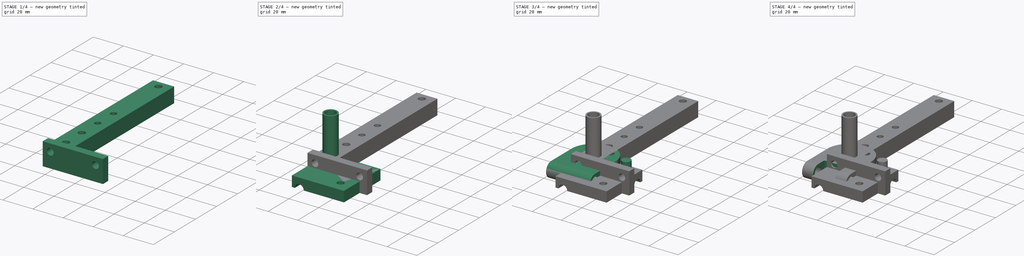
[diagram: build sequence overview — one tinted view per stage of 4, left to right]
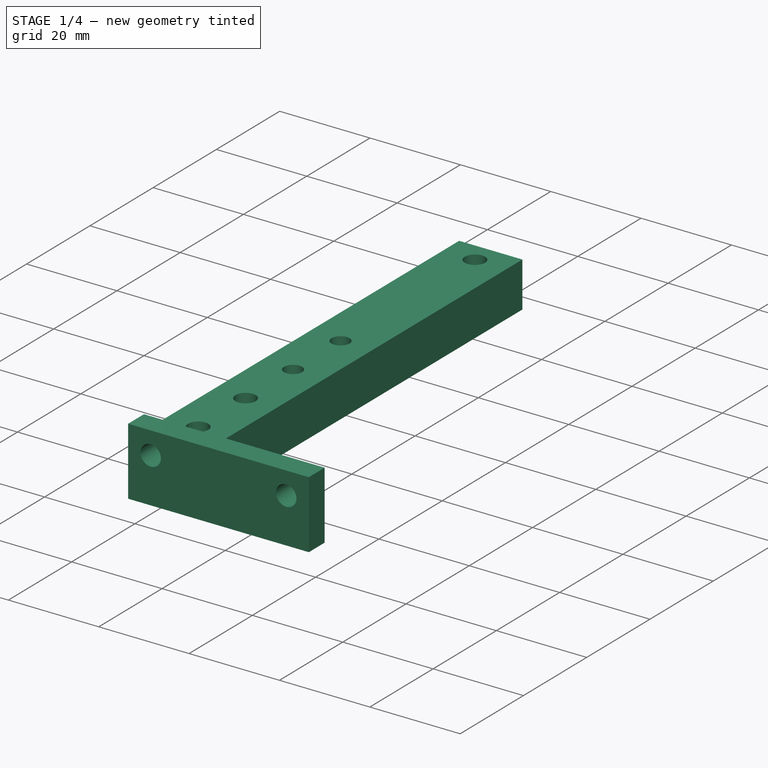
[diagram: stage 1 of 4 — iso view after this stage's code; geometry added in this stage tinted green]
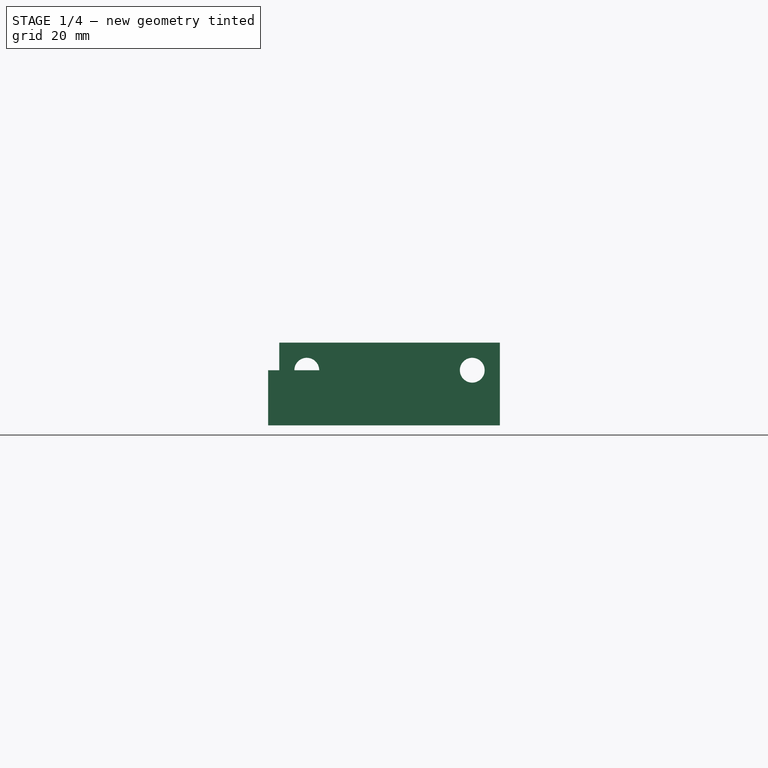
[diagram: stage 1 of 4 — front view after this stage's code; geometry added in this stage tinted green]
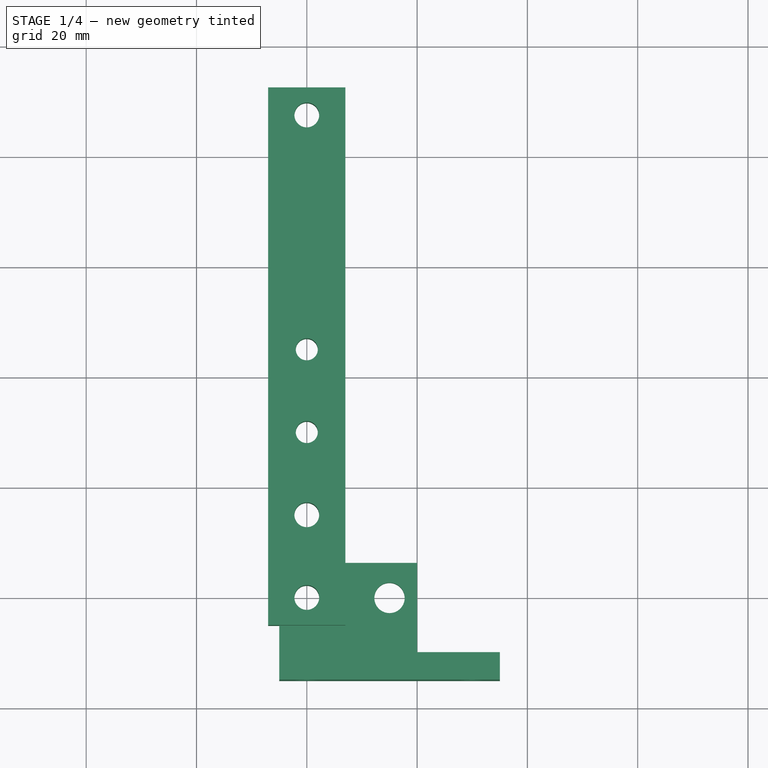
[diagram: stage 1 of 4 — top view after this stage's code; geometry added in this stage tinted green]
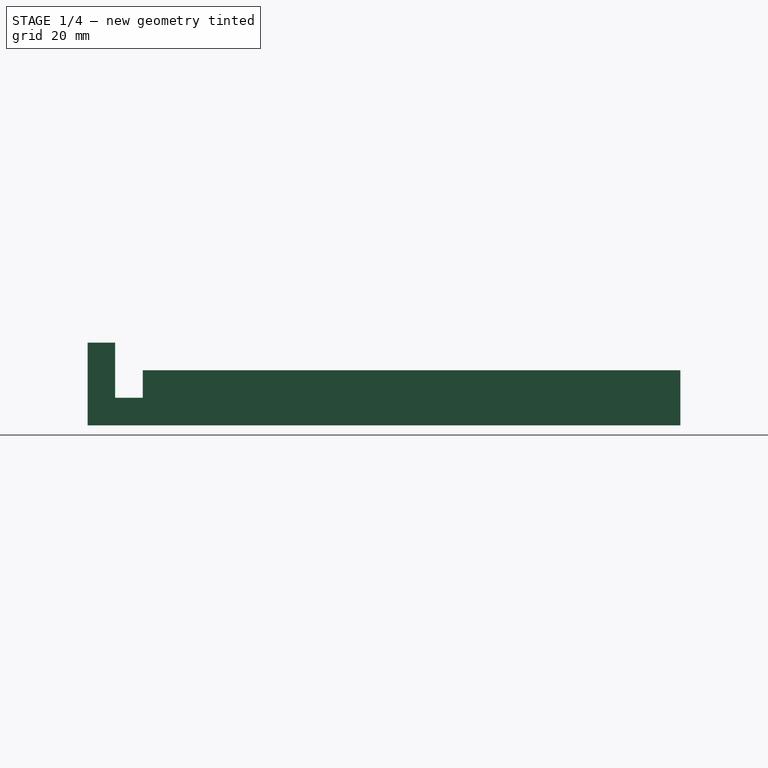
[diagram: stage 1 of 4 — right view after this stage's code; geometry added in this stage tinted green]
FCSTD DOCUMENT  (FreeCAD 0.19R24276 (Git))
Label: A4_PAINT_ROLLER_1V0
License: All rights reserved
LicenseURL: http://en.wikipedia.org/wiki/All_rights_reserved
objects: PartDesign::CoordinateSystem×18, Sketcher::SketchObject×13, App::Link×10, PartDesign::Pad×8, App::Part×7, PartDesign::Body×6, PartDesign::Pocket×5, App::DocumentObjectGroup×2, App::FeaturePython×1
note: 63 computed .brp shape members not serialized (recipe doc carries the construction recipe); baked Part::Feature solids carry a one-line shape summary decoded from their .brp
EXTERNAL_REF file=load cell 4541.FCStd obj=LCS_0
EXTERNAL_REF file=load cell 4541.FCStd obj=LOAD_CELL_4541
EXTERNAL_REF file=paint roller.FCStd obj=LCS_0
EXTERNAL_REF file=paint roller.FCStd obj=PAINT_ROLLER
EXTERNAL_REF file=HUB-545616.FCStd obj=flatFace
EXTERNAL_REF file=HUB-545616.FCStd obj=_45616_assembly
EXTERNAL_REF file=load cell 4541.FCStd obj=rollerBracket
EXTERNAL_REF file=load cell 4541.FCStd obj=loadCellBracket

FEATURE [PartDesign::CoordinateSystem] LCS_Origin
  AttacherType = Attacher::AttachEngine3D
  MapMode = 2
  Support = -> [X_Axis]
FEATURE [App::DocumentObjectGroup] Constraints
FEATURE [App::FeaturePython] Variables  # WARN: FeaturePython — macro-defined, semantics opaque (R4)
  hubHolePD = 19.558
  springBracketL = 87.5
  expr: hubHolePD = 0.77 * 25.4
FEATURE [PartDesign::CoordinateSystem] LCS_0
  AttacherType = Attacher::AttachEngine3D
  MapMode = 2
  Support = -> [X_Axis001]
FEATURE [PartDesign::CoordinateSystem] LCS_0001
  AttacherType = Attacher::AttachEngine3D
  MapMode = 2
  Support = -> [X_Axis002]
FEATURE [Sketcher::SketchObject] Sketch
  FullyConstrained = true
  MapMode = 5
  Support = -> [XY_Plane002]
  sketch-geometry (6):
    g0: Circle CenterX=0 CenterY=0 CenterZ=0 NormalX=0 NormalY=0 NormalZ=1 AngleXU=0 Radius=2.75
    g1: Circle CenterX=15 CenterY=0 CenterZ=0 NormalX=0 NormalY=0 NormalZ=1 AngleXU=0 Radius=2.75
    g2: LineSegment StartX=-5 StartY=-15 StartZ=0 EndX=20 EndY=-15 EndZ=0
    g3: LineSegment StartX=20 StartY=-15 StartZ=0 EndX=20 EndY=6.35 EndZ=0
    g4: LineSegment StartX=20 StartY=6.35 StartZ=0 EndX=-5 EndY=6.35 EndZ=0
    g5: LineSegment StartX=-5 StartY=6.35 StartZ=0 EndX=-5 EndY=-15 EndZ=0
  constraints (17):
    c: Coincident(g0,g-1)
    c: PointOnObject(g1,g-1)
    c: Diameter(g0) = 5.5
    c: Equal(g0,g1)
    c: DistanceX(g0,g1) = 15
    c: Coincident(g2,g3)
    c: Coincident(g3,g4)
    c: Coincident(g4,g5)
    c: Coincident(g5,g2)
    c: Horizontal(g2)
    c: Horizontal(g4)
    c: Vertical(g3)
    c: Vertical(g5)
    c: DistanceY(g-1,g4) = 6.35
    c: DistanceX(g4,g-1) = 5
    c: DistanceX(g1,g3) = 5
    c: DistanceY(g2,g-1) = 15
FEATURE [PartDesign::Pad] Pad
  Direction = (1,1,1)
  Length = 5
  Length2 = 100
  Profile = -> Sketch
  Refine = true
  Type = 0
FEATURE [PartDesign::Body] Body_3
  Group = -> [LCS_0005,Sketch005,Pad003,Sketch006,Pocket002]
  Origin = -> Origin006
  Tip = -> Pocket002
FEATURE [App::Link] ROLLER_BRACKET_B
  AssemblyType = Asm4EE
  AttachedBy = #LCS_0004
  AttachedTo = load_cell_4541#rollerBracket
  AttachmentOffset = pos=(0,0,0) rot=(0,1,0;3.14159rad)
  LinkPlacement = pos=(20,6.35,-6.35) rot=(-0.57735,-0.57735,-0.57735;2.0944rad)
  LinkedObject = -> ROLLER_BRACKET_B_1_0
  Placement = pos=(20,6.35,-6.35) rot=(-0.57735,-0.57735,-0.57735;2.0944rad)
  expr: Placement = load_cell_4541.Placement * load_cell_4541#rollerBracket.Placement * AttachmentOffset * LCS_0004.Placement ^ -1
FEATURE [PartDesign::CoordinateSystem] shaft
  AttacherType = Attacher::AttachEngine3D
  MapMode = 45
  Placement = pos=(-7e-16,25,5) rot=(0.57735,0.57735,0.57735;4.18879rad)
  Support = -> [Pocket002]
FEATURE [App::Part] ROLLER_BRACKET_B_1_0
  Group = -> [LCS_0004,Body_3,shaft]
  Origin = -> Origin005
FEATURE [PartDesign::CoordinateSystem] shaft001
  AttacherType = Attacher::AttachEngine3D
  MapMode = 45
  Placement = pos=(0,-20,5) rot=(-0.57735,-0.57735,-0.577351;2.0944rad)
  Support = -> [Pocket001]
FEATURE [App::Part] ROLLER_BRACKET_1_0
  Group = -> [LCS_0002,Body_2,shaft001]
  Origin = -> Origin003
FEATURE [PartDesign::CoordinateSystem] LCS_0006
  AttacherType = Attacher::AttachEngine3D
  MapMode = 2
  Support = -> [X_Axis007]
FEATURE [PartDesign::CoordinateSystem] LCS_0007
  AttacherType = Attacher::AttachEngine3D
  MapMode = 2
  Support = -> [X_Axis008]
FEATURE [Sketcher::SketchObject] Sketch007
  FullyConstrained = true
  MapMode = 5
  Support = -> [XY_Plane008]
  expr: Constraints[17] = Variables.springBracketL
  sketch-geometry (9):
    g0: LineSegment StartX=-7 StartY=-5 StartZ=0 EndX=7 EndY=-5 EndZ=0
    g1: LineSegment StartX=7 StartY=-5 StartZ=0 EndX=7 EndY=92.5 EndZ=0
    g2: LineSegment StartX=7 StartY=92.5 StartZ=0 EndX=-7 EndY=92.5 EndZ=0
    g3: LineSegment StartX=-7 StartY=92.5 StartZ=0 EndX=-7 EndY=-5 EndZ=0
    g4: Circle CenterX=0 CenterY=0 CenterZ=0 NormalX=0 NormalY=0 NormalZ=1 AngleXU=0 Radius=2.25
    g5: Circle CenterX=0 CenterY=15 CenterZ=0 NormalX=0 NormalY=0 NormalZ=1 AngleXU=0 Radius=2.25
    g6: Circle CenterX=0 CenterY=87.5 CenterZ=0 NormalX=0 NormalY=0 NormalZ=1 AngleXU=0 Radius=2.25
    g7: Circle CenterX=0 CenterY=30 CenterZ=0 NormalX=0 NormalY=0 NormalZ=1 AngleXU=0 Radius=2
    g8: Circle CenterX=0 CenterY=45 CenterZ=0 NormalX=0 NormalY=0 NormalZ=1 AngleXU=0 Radius=2
  constraints (25):
    c: Coincident(g0,g1)
    c: Coincident(g1,g2)
    c: Coincident(g2,g3)
    c: Coincident(g3,g0)
    c: Horizontal(g2)
    c: Vertical(g1)
    c: Vertical(g3)
    c: Coincident(g4,g-1)
    c: Symmetric(g0,g0,g-2)
    c: DistanceX(g0,g0) = 14
    c: Diameter(g4) = 4.5
    c: PointOnObject(g5,g-2)
    c: Equal(g5,g4)
    c: DistanceY(g4,g5) = 15
    c: DistanceY(g0,g4) = 5
    c: PointOnObject(g6,g-2)
    c: Diameter(g6) = 4.5
    c: DistanceY(g-1,g6) = 87.5
    c: DistanceY(g6,g1) = 5
    c: PointOnObject(g7,g-2)
    c: PointOnObject(g8,g-2)
    c: Diameter(g8) = 4
    c: Equal(g8,g7)
    c: DistanceY(g7,g8) = 15
    c: DistanceY(g5,g7) = 15
FEATURE [PartDesign::Pad] Pad004
  Direction = (1,1,1)
  Length = 10
  Length2 = 100
  Profile = -> Sketch007
  Refine = true
  Type = 0
FEATURE [PartDesign::Body] Body_6
  Group = -> [LCS_0011,Sketch012,Pad007]
  Origin = -> Origin012
  Tip = -> Pad007
FEATURE [App::Part] SPRING  label="SPRING-1.0"
  Group = -> [LCS_0010,Body_6]
  Origin = -> Origin011
FEATURE [PartDesign::CoordinateSystem] spring
  AttacherType = Attacher::AttachEngine3D
  MapMode = 11
  Placement = pos=(0,87.5,0) rot=(0,0,1;1.5708rad)
  Support = -> [Pad004]
FEATURE [App::Part] SPRING_BRACKET_1_0
  Group = -> [LCS_0006,Body_4,spring]
  Origin = -> Origin007
FEATURE [App::Link] SPRING001  label="SPRING"
  AssemblyType = Asm4EE
  AttachedBy = #LCS_0010
  AttachedTo = SPRING_BRACKET#spring
  AttachmentOffset = pos=(0,0,10) rot=(0,0,1;0rad)
  LinkPlacement = pos=(107.5,-6.35,-6.35) rot=(-1,0,0;1.5708rad)
  LinkedObject = -> SPRING
  Placement = pos=(107.5,-6.35,-6.35) rot=(-1,0,0;1.5708rad)
  expr: Placement = SPRING_BRACKET.Placement * spring.Placement * AttachmentOffset * LCS_0010.Placement ^ -1
FEATURE [Sketcher::SketchObject] Sketch013
  AttachmentOffset = pos=(0,0,10) rot=(0,0,1;0rad)
  FullyConstrained = true
  MapMode = 5
  Placement = pos=(0,-10,-2.2e-15) rot=(1,0,0;1.5708rad)
  Support = -> [XZ_Plane002]
  sketch-geometry (6):
    g0: LineSegment StartX=-5 StartY=0 StartZ=0 EndX=35 EndY=0 EndZ=0
    g1: LineSegment StartX=35 StartY=0 StartZ=0 EndX=35 EndY=15 EndZ=0
    g2: LineSegment StartX=35 StartY=15 StartZ=0 EndX=-5 EndY=15 EndZ=0
    g3: LineSegment StartX=-5 StartY=15 StartZ=0 EndX=-5 EndY=0 EndZ=0
    g4: Circle CenterX=0 CenterY=10 CenterZ=0 NormalX=0 NormalY=0 NormalZ=1 AngleXU=0 Radius=2.25
    g5: Circle CenterX=30 CenterY=10 CenterZ=0 NormalX=0 NormalY=0 NormalZ=1 AngleXU=0 Radius=2.25
  constraints (18):
    c: Coincident(g0,g1)
    c: Coincident(g1,g2)
    c: Coincident(g2,g3)
    c: Coincident(g3,g0)
    c: Horizontal(g0)
    c: Horizontal(g2)
    c: Vertical(g1)
    c: Vertical(g3)
    c: PointOnObject(g0,g-1)
    c: DistanceX(g2,g-1) = 5
    c: PointOnObject(g4,g-2)
    c: Diameter(g5) = 4.5
    c: Equal(g5,g4)
    c: DistanceX(g4,g5) = 30
    c: DistanceX(g5,g1) = 5
    c: DistanceY(g-1,g4) = 10
    c: Horizontal(g4,g5)
    c: DistanceY(g4,g2) = 5
FEATURE [PartDesign::Pad] Pad008
  BaseFeature = -> Pad
  Direction = (1,1,1)
  Length = 5
  Length2 = 100
  Profile = -> Sketch013
  Refine = true
  Type = 0
FEATURE [PartDesign::Body] Body
  Group = -> [LCS_0001,Sketch,Pad,Sketch013,Pad008]
  Origin = -> Origin002
  Tip = -> Pad008
FEATURE [App::Link] LOAD_CELL_BRACKET
  AssemblyType = Asm4EE
  AttachedBy = #LCS_0
  AttachedTo = load_cell_4541#loadCellBracket
  AttachmentOffset = pos=(0,0,12.7) rot=(0,0,1;4.71239rad)
  LinkPlacement = pos=(-20,-6.35,-6.35) rot=(0,0.707107,-0.707107;3.14159rad)
  LinkedObject = -> LOAD_CELL_BRACKET_1_0
  Placement = pos=(-20,-6.35,-6.35) rot=(0,0.707107,-0.707107;3.14159rad)
  expr: Placement = load_cell_4541.Placement * load_cell_4541#loadCellBracket.Placement * AttachmentOffset * LCS_0.Placement ^ -1
FEATURE [PartDesign::CoordinateSystem] robot
  AttacherType = Attacher::AttachEngine3D
  MapMode = 11
  Placement = pos=(0,-15,10) rot=(0.57735,-0.57735,0.57735;2.0944rad)
  Support = -> [Pad008]
FEATURE [App::Part] LOAD_CELL_BRACKET_1_0
  Group = -> [LCS_0,Body,robot]
  Origin = -> Origin001
FEATURE [App::DocumentObjectGroup] Parts
  Group = -> [LOAD_CELL_BRACKET_1_0,ROLLER_BRACKET_1_0,ROLLER_BRACKET_B_1_0,SPRING_BRACKET_1_0,SPRING_CLAMP_1_0,SPRING]
FEATURE [PartDesign::CoordinateSystem] robot001
  AttacherType = Attacher::AttachEngine3D
  Placement = pos=(-20,-16.35,8.65) rot=(0,0,-1;1.5708rad)
  expr: Placement = LOAD_CELL_BRACKET.Placement * robot.Placement * AttachmentOffset
FEATURE [App::Part] Model
  Configuration = 0
  Group = -> [LCS_Origin,Constraints,Variables,load_cell_4541,ROLLER_BRACKET,PAINT_ROLLER,HUB_6,ROLLER_BRACKET_B,SPRING_BRACKET,SPRING_CLAMP_1,SPRING_CLAMP_2,SPRING001,LOAD_CELL_BRACKET,robot001]
  Origin = -> Origin
  Type = Assembly4 Model
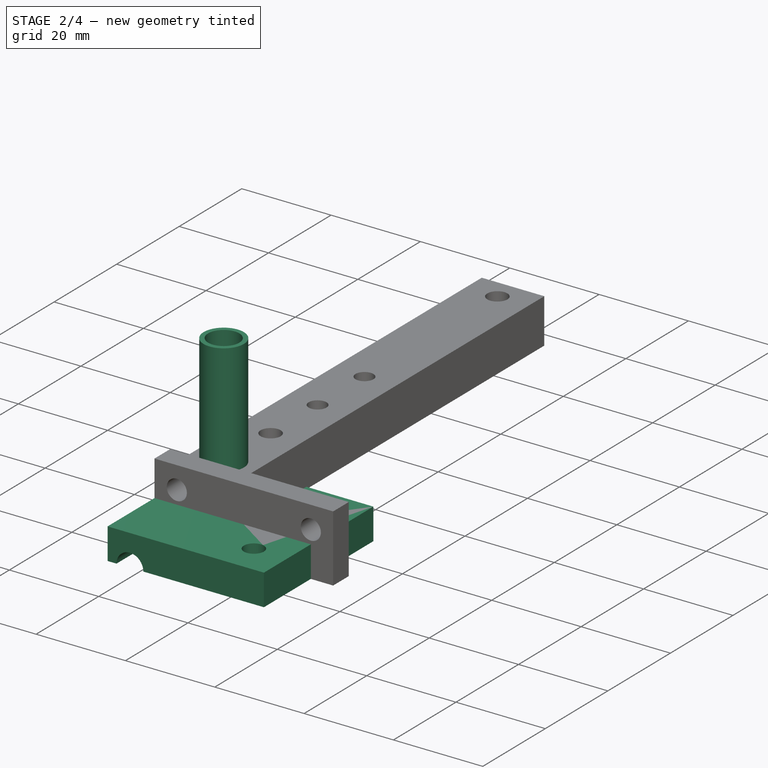
[diagram: stage 2 of 4 — iso view after this stage's code; geometry added in this stage tinted green]
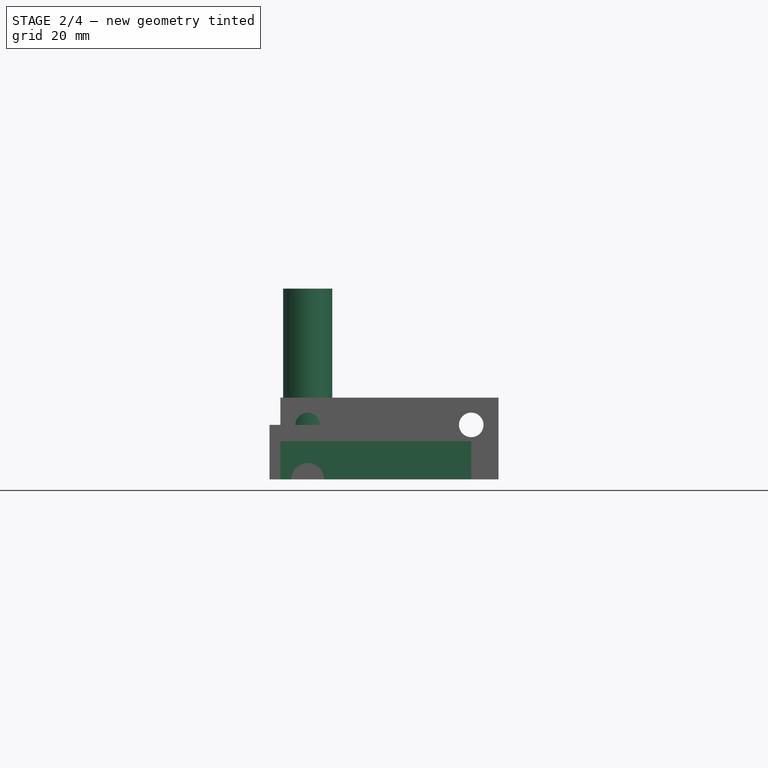
[diagram: stage 2 of 4 — front view after this stage's code; geometry added in this stage tinted green]
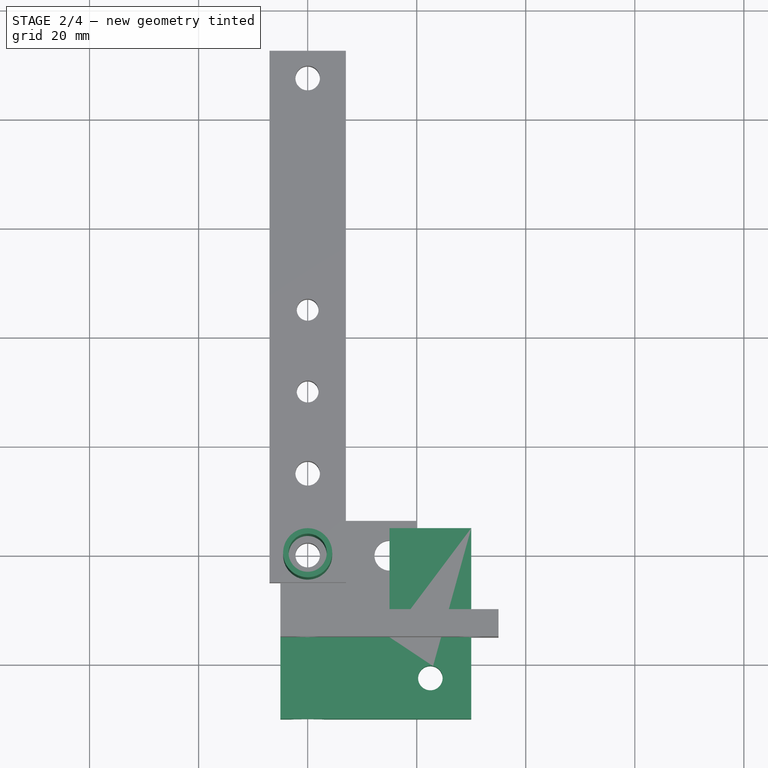
[diagram: stage 2 of 4 — top view after this stage's code; geometry added in this stage tinted green]
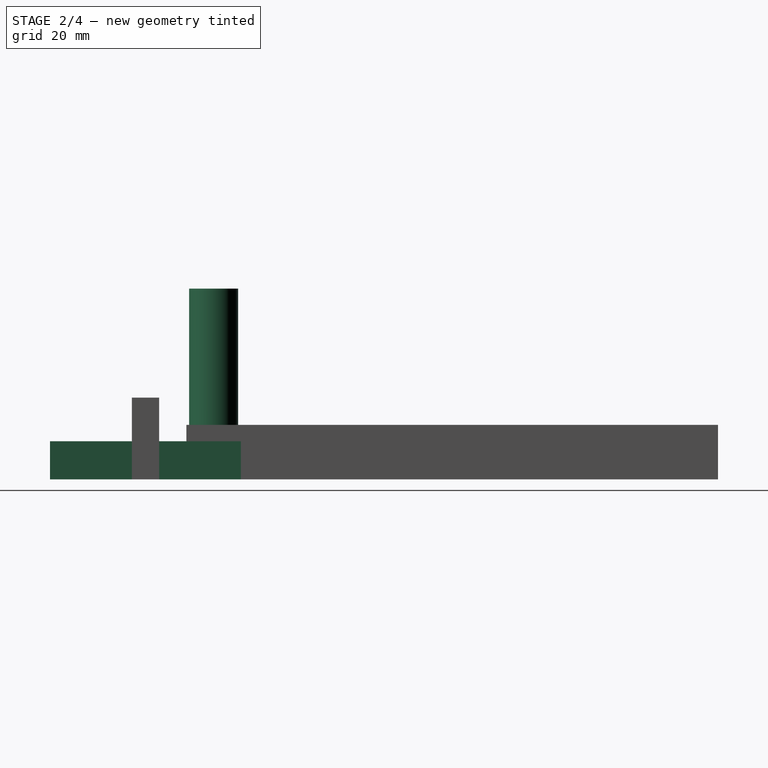
[diagram: stage 2 of 4 — right view after this stage's code; geometry added in this stage tinted green]
FEATURE [PartDesign::Body] Body_4
  Group = -> [LCS_0007,Sketch007,Pad004]
  Origin = -> Origin008
  Tip = -> Pad004
FEATURE [App::Link] SPRING_BRACKET
  AssemblyType = Asm4EE
  AttachedBy = #LCS_0006
  AttachedTo = load_cell_4541#rollerBracket
  AttachmentOffset = pos=(0,0,22.7) rot=(0,1,0;3.14159rad)
  LinkPlacement = pos=(20,-16.35,-6.35) rot=(-0.57735,-0.57735,-0.57735;2.0944rad)
  LinkedObject = -> SPRING_BRACKET_1_0
  Placement = pos=(20,-16.35,-6.35) rot=(-0.57735,-0.57735,-0.57735;2.0944rad)
  expr: Placement = load_cell_4541.Placement * load_cell_4541#rollerBracket.Placement * AttachmentOffset * LCS_0006.Placement ^ -1
FEATURE [PartDesign::CoordinateSystem] LCS_0008
  AttacherType = Attacher::AttachEngine3D
  MapMode = 2
  Support = -> [X_Axis009]
FEATURE [PartDesign::CoordinateSystem] LCS_0009
  AttacherType = Attacher::AttachEngine3D
  MapMode = 2
  Support = -> [X_Axis010]
FEATURE [Sketcher::SketchObject] Sketch008
  FullyConstrained = true
  MapMode = 5
  Support = -> [XY_Plane010]
  sketch-geometry (7):
    g0: LineSegment StartX=-5 StartY=-30 StartZ=0 EndX=-5 EndY=-15 EndZ=0
    g1: LineSegment StartX=-5 StartY=-15 StartZ=0 EndX=15 EndY=-15 EndZ=0
    g2: LineSegment StartX=15 StartY=-15 StartZ=0 EndX=15 EndY=5 EndZ=0
    g3: LineSegment StartX=15 StartY=5 StartZ=0 EndX=30 EndY=5 EndZ=0
    g4: LineSegment StartX=30 StartY=5 StartZ=0 EndX=30 EndY=-30 EndZ=0
    g5: LineSegment StartX=30 StartY=-30 StartZ=0 EndX=-5 EndY=-30 EndZ=0
    g6: Circle CenterX=22.5 CenterY=-22.5 CenterZ=0 NormalX=0 NormalY=0 NormalZ=1 AngleXU=0 Radius=2.25
  constraints (21):
    c: Vertical(g0)
    c: Coincident(g0,g1)
    c: Horizontal(g1)
    c: Coincident(g1,g2)
    c: Vertical(g2)
    c: Coincident(g2,g3)
    c: Horizontal(g3)
    c: Coincident(g3,g4)
    c: Vertical(g4)
    c: Coincident(g4,g5)
    c: Coincident(g5,g0)
    c: Horizontal(g5)
    c: DistanceX(g-1,g2) = 15
    c: DistanceY(g0,g-1) = 15
    c: DistanceY(g0,g0) = 15
    c: Equal(g0,g3)
    c: Diameter(g6) = 4.5
    c: DistanceY(g6,g1) = 7.5
    c: DistanceX(g1,g6) = 7.5
    c: DistanceY(g-1,g3) = 5
    c: DistanceX(g0,g-1) = 5
FEATURE [PartDesign::Pad] Pad005
  Direction = (1,1,1)
  Length = 7
  Length2 = 100
  Profile = -> Sketch008
  Refine = true
  Type = 0
FEATURE [Sketcher::SketchObject] Sketch009
  FullyConstrained = true
  MapMode = 5
  Placement = pos=(0,0,0) rot=(1,0,0;1.5708rad)
  Support = -> [XZ_Plane010]
  sketch-geometry (1):
    g0: Circle CenterX=0 CenterY=0 CenterZ=0 NormalX=0 NormalY=0 NormalZ=1 AngleXU=0 Radius=3
  constraints (2):
    c: Coincident(g0,g-1)
    c: Diameter(g0) = 6
FEATURE [PartDesign::Pocket] Pocket003
  BaseFeature = -> Pad005
  Length = 5
  Length2 = 100
  Profile = -> Sketch009
  Refine = true
  Reversed = true
  Type = 1
FEATURE [PartDesign::Body] Body_5
  Group = -> [LCS_0009,Sketch008,Pad005,Sketch009,Pocket003,Sketch010,Pocket004,Sketch011,Pad006]
  Origin = -> Origin010
  Tip = -> Pad006
FEATURE [App::Part] SPRING_CLAMP_1_0
  Group = -> [LCS_0008,Body_5]
  Origin = -> Origin009
FEATURE [App::Link] SPRING_CLAMP_1
  AssemblyType = Asm4EE
  AttachedBy = #LCS_0008
  AttachedTo = PAINT_ROLLER#LCS_0
  AttachmentOffset = pos=(0,90,0) rot=(0,1,0;3.14159rad)
  LinkPlacement = pos=(130,31.35,-6.35) rot=(0.57735,0.57735,0.57735;4.18879rad)
  LinkedObject = -> SPRING_CLAMP_1_0
  Placement = pos=(130,31.35,-6.35) rot=(0.57735,0.57735,0.57735;4.18879rad)
  expr: Placement = PAINT_ROLLER.Placement * paint_roller#LCS_0.Placement * AttachmentOffset * LCS_0008.Placement ^ -1
FEATURE [App::Link] SPRING_CLAMP_2
  AssemblyType = Asm4EE
  AttachedBy = #LCS_0008
  AttachedTo = PAINT_ROLLER#LCS_0
  AttachmentOffset = pos=(0,90,0) rot=(0,0,1;4.71239rad)
  LinkPlacement = pos=(130,31.35,-6.35) rot=(0,-0.707107,0.707107;3.14159rad)
  LinkedObject = -> SPRING_CLAMP_1_0
  Placement = pos=(130,31.35,-6.35) rot=(0,-0.707107,0.707107;3.14159rad)
  expr: Placement = PAINT_ROLLER.Placement * paint_roller#LCS_0.Placement * AttachmentOffset * LCS_0008.Placement ^ -1
FEATURE [PartDesign::CoordinateSystem] LCS_0010
  AttacherType = Attacher::AttachEngine3D
  MapMode = 2
  Support = -> [X_Axis011]
FEATURE [PartDesign::CoordinateSystem] LCS_0011
  AttacherType = Attacher::AttachEngine3D
  MapMode = 2
  Support = -> [X_Axis012]
FEATURE [Sketcher::SketchObject] Sketch012
  FullyConstrained = true
  MapMode = 5
  Support = -> [XY_Plane012]
  sketch-geometry (2):
    g0: Circle CenterX=0 CenterY=0 CenterZ=0 NormalX=0 NormalY=0 NormalZ=1 AngleXU=0 Radius=4.5
    g1: Circle CenterX=0 CenterY=0 CenterZ=0 NormalX=0 NormalY=0 NormalZ=1 AngleXU=0 Radius=3.5
  constraints (4):
    c: Coincident(g0,g-1)
    c: Coincident(g1,g0)
    c: Diameter(g1) = 7
    c: Diameter(g0) = 9
FEATURE [PartDesign::Pad] Pad007
  Direction = (1,1,1)
  Length = 35
  Length2 = 100
  Profile = -> Sketch012
  Refine = true
  Type = 0
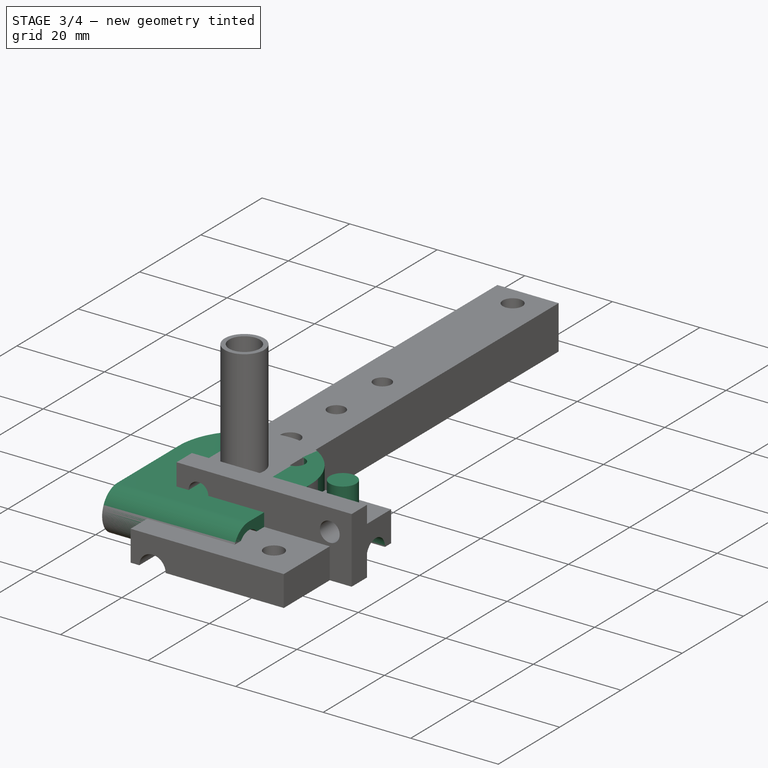
[diagram: stage 3 of 4 — iso view after this stage's code; geometry added in this stage tinted green]
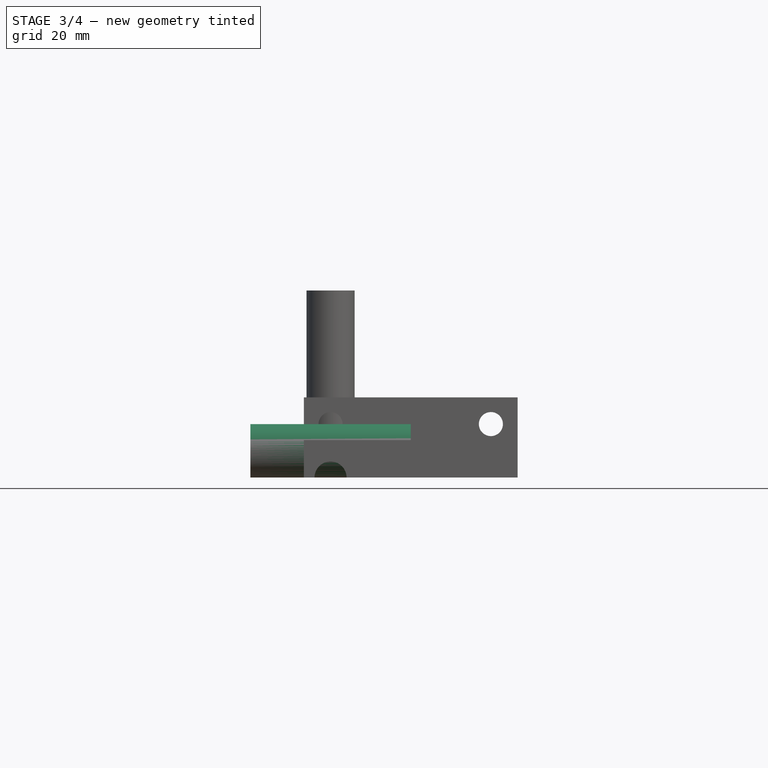
[diagram: stage 3 of 4 — front view after this stage's code; geometry added in this stage tinted green]
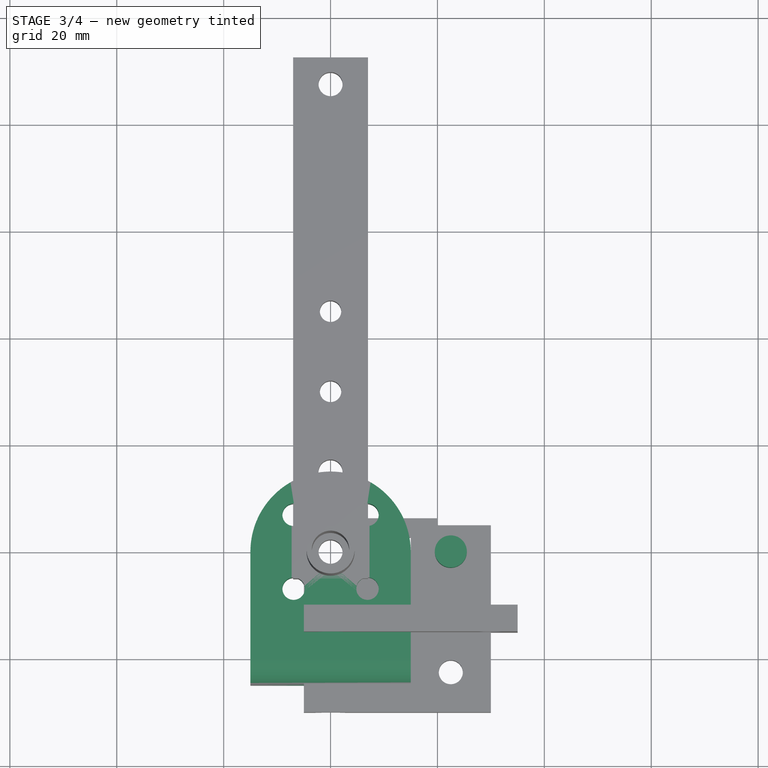
[diagram: stage 3 of 4 — top view after this stage's code; geometry added in this stage tinted green]
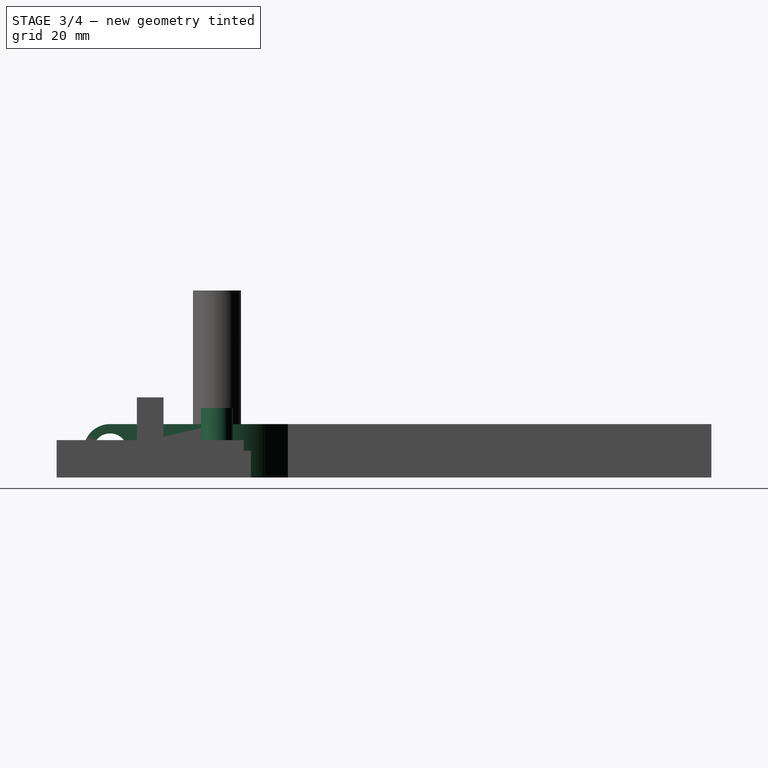
[diagram: stage 3 of 4 — right view after this stage's code; geometry added in this stage tinted green]
FEATURE [App::Link] load_cell_4541
  AssemblyType = Asm4EE
  AttachedBy = #LCS_0
  AttachedTo = Parent Assembly#LCS_Origin
  AttachmentOffset = pos=(0,0,0) rot=(0,-1,0;3.14159rad)
  LinkPlacement = pos=(0,0,0) rot=(0,-1,0;3.14159rad)
  LinkedObject = -> <external load cell 4541.FCStd>#LOAD_CELL_4541
  Placement = pos=(0,0,0) rot=(0,-1,0;3.14159rad)
  expr: Placement = LCS_Origin.Placement * AttachmentOffset * load_cell_4541#LCS_0.Placement ^ -1
FEATURE [PartDesign::CoordinateSystem] LCS_0002
  AttacherType = Attacher::AttachEngine3D
  MapMode = 2
  Support = -> [X_Axis003]
FEATURE [PartDesign::CoordinateSystem] LCS_0003
  AttacherType = Attacher::AttachEngine3D
  MapMode = 2
  Support = -> [X_Axis004]
FEATURE [Sketcher::SketchObject] Sketch002
  FullyConstrained = true
  MapMode = 5
  Support = -> [XY_Plane004]
  expr: Constraints[1] = Variables.hubHolePD
  sketch-geometry (14):
    g0: Circle CenterX=0 CenterY=0 CenterZ=0 NormalX=0 NormalY=0 NormalZ=1 AngleXU=0 Radius=9.779
    g1: LineSegment StartX=-6.9148 StartY=6.9148 StartZ=0 EndX=6.9148 EndY=6.9148 EndZ=0
    g2: LineSegment StartX=6.9148 StartY=6.9148 StartZ=0 EndX=6.9148 EndY=-6.9148 EndZ=0
    g3: LineSegment StartX=6.9148 StartY=-6.9148 StartZ=0 EndX=-6.9148 EndY=-6.9148 EndZ=0
    g4: LineSegment StartX=-6.9148 StartY=-6.9148 StartZ=0 EndX=-6.9148 EndY=6.9148 EndZ=0
    g5: Circle CenterX=0 CenterY=0 CenterZ=0 NormalX=0 NormalY=0 NormalZ=1 AngleXU=0 Radius=3.35
    g6: Circle CenterX=-6.9148 CenterY=6.9148 CenterZ=0 NormalX=0 NormalY=0 NormalZ=1 AngleXU=0 Radius=2.1
    g7: Circle CenterX=6.9148 CenterY=6.9148 CenterZ=0 NormalX=0 NormalY=0 NormalZ=1 AngleXU=0 Radius=2.1
    g8: Circle CenterX=6.9148 CenterY=-6.9148 CenterZ=0 NormalX=0 NormalY=0 NormalZ=1 AngleXU=0 Radius=2.1
    g9: Circle CenterX=-6.9148 CenterY=-6.9148 CenterZ=0 NormalX=0 NormalY=0 NormalZ=1 AngleXU=0 Radius=2.1
    g10: ArcOfCircle CenterX=0 CenterY=0 CenterZ=0 NormalX=0 NormalY=0 NormalZ=1 AngleXU=0 Radius=15 StartAngle=0 EndAngle=3.14159
    g11: LineSegment StartX=-15 StartY=1.8e-15 StartZ=0 EndX=-15 EndY=-25 EndZ=0
    g12: LineSegment StartX=-15 StartY=-25 StartZ=0 EndX=15 EndY=-25 EndZ=0
    g13: LineSegment StartX=15 StartY=-25 StartZ=0 EndX=15 EndY=0 EndZ=0
  constraints (35):
    c: Coincident(g0,g-1)
    c: Diameter(g0) = 19.558
    c: Coincident(g1,g2)
    c: Coincident(g2,g3)
    c: Coincident(g3,g4)
    c: Coincident(g4,g1)
    c: Horizontal(g1)
    c: Horizontal(g3)
    c: Vertical(g2)
    c: Vertical(g4)
    c: PointOnObject(g1,g0)
    c: PointOnObject(g2,g0)
    c: PointOnObject(g1,g0)
    c: Equal(g1,g4)
    c: Coincident(g5,g-1)
    c: Diameter(g5) = 6.7
    c: Coincident(g6,g1)
    c: Coincident(g7,g1)
    c: Coincident(g8,g2)
    c: Coincident(g9,g3)
    c: Diameter(g9) = 4.2
    c: Equal(g9,g8)
    c: Equal(g9,g7)
    c: Equal(g9,g6)
    c: Coincident(g10,g5)
    c: PointOnObject(g10,g-1)
    c: PointOnObject(g10,g-1)
    c: Diameter(g10) = 30
    c: Tangent(g10,g11) = -1.5708
    c: Coincident(g11,g12)
    c: Horizontal(g12)
    c: Coincident(g12,g13)
    c: Coincident(g13,g10)
    c: Vertical(g13)
    c: DistanceY(g11,g11) = 25
FEATURE [PartDesign::Pad] Pad002
  Direction = (1,1,1)
  Length = 10
  Length2 = 100
  Profile = -> Sketch002
  Refine = true
  Type = 0
FEATURE [App::Link] ROLLER_BRACKET
  AssemblyType = Asm4EE
  AttachedBy = #shaft001
  AttachedTo = ROLLER_BRACKET_B#shaft
  AttachmentOffset = pos=(0,0,0) rot=(0.707107,0,0.707107;3.14159rad)
  LinkPlacement = pos=(40,31.35,-6.35) rot=(0,-1,0;4.71239rad)
  LinkedObject = -> ROLLER_BRACKET_1_0
  Placement = pos=(40,31.35,-6.35) rot=(0,-1,0;4.71239rad)
  expr: Placement = ROLLER_BRACKET_B.Placement * shaft.Placement * AttachmentOffset * shaft001.Placement ^ -1
FEATURE [App::Link] PAINT_ROLLER  label="PAINT-ROLLER"
  AssemblyType = Asm4EE
  AttachedBy = #LCS_0
  AttachedTo = ROLLER_BRACKET#LCS_0002
  AttachmentOffset = pos=(0,0,0) rot=(-1,0,0;4.71239rad)
  LinkPlacement = pos=(40,31.35,-6.35) rot=(0.57735,0.57735,-0.57735;2.0944rad)
  LinkedObject = -> <external paint roller.FCStd>#PAINT_ROLLER
  Placement = pos=(40,31.35,-6.35) rot=(0.57735,0.57735,-0.57735;2.0944rad)
  expr: Placement = ROLLER_BRACKET.Placement * LCS_0002.Placement * AttachmentOffset * paint_roller#LCS_0.Placement ^ -1
FEATURE [App::Link] HUB_6
  AssemblyType = Asm4EE
  AttachedBy = #flatFace
  AttachedTo = ROLLER_BRACKET#LCS_0002
  AttachmentOffset = pos=(0,0,10) rot=(0.707107,0.707107,0;3.14159rad)
  LinkPlacement = pos=(50.464,14.2602,-27.9653) rot=(-0.57735,0.57735,0.57735;2.0944rad)
  LinkedObject = -> <external HUB-545616.FCStd>#_45616_assembly
  Placement = pos=(50.464,14.2602,-27.9653) rot=(-0.57735,0.57735,0.57735;2.0944rad)
  expr: Placement = ROLLER_BRACKET.Placement * LCS_0002.Placement * AttachmentOffset * HUB_5456161#flatFace.Placement ^ -1
FEATURE [Sketcher::SketchObject] Sketch003
  FullyConstrained = true
  MapMode = 5
  Placement = pos=(0,0,0) rot=(0.57735,0.57735,0.57735;2.0944rad)
  Support = -> [YZ_Plane004]
  sketch-geometry (5):
    g0: Circle CenterX=-20 CenterY=5 CenterZ=0 NormalX=0 NormalY=0 NormalZ=1 AngleXU=0 Radius=3.25
    g1: ArcOfCircle CenterX=-20 CenterY=5 CenterZ=0 NormalX=0 NormalY=0 NormalZ=1 AngleXU=0 Radius=5 StartAngle=1.5708 EndAngle=4.71239
    g2: LineSegment StartX=-20 StartY=10 StartZ=0 EndX=-26 EndY=10 EndZ=0
    g3: LineSegment StartX=-26 StartY=10 StartZ=0 EndX=-26 EndY=0 EndZ=0
    g4: LineSegment StartX=-26 StartY=0 StartZ=0 EndX=-20 EndY=2.62519e-11 EndZ=0
  constraints (15):
    c: Diameter(g0) = 6.5
    c: DistanceY(g-1,g0) = 5
    c: Coincident(g1,g0)
    c: PointOnObject(g1,g-1)
    c: Diameter(g1) = 10
    c: Coincident(g1,g2)
    c: Coincident(g2,g3)
    c: PointOnObject(g3,g-1)
    c: Coincident(g3,g4)
    c: Coincident(g4,g1)
    c: Vertical(g3)
    c: Vertical(g0,g1)
    c: Horizontal(g2)
    c: DistanceX(g0,g-1) = 20
    c: DistanceX(g2,g2) = 6
FEATURE [PartDesign::Pocket] Pocket
  BaseFeature = -> Pad002
  Length = 5
  Length2 = 100
  Midplane = true
  Profile = -> Sketch003
  Refine = true
  Type = 1
FEATURE [Sketcher::SketchObject] Sketch010
  FullyConstrained = true
  MapMode = 5
  Placement = pos=(0,0,0) rot=(0.57735,0.57735,0.57735;2.0944rad)
  Support = -> [YZ_Plane010]
  sketch-geometry (1):
    g0: Circle CenterX=0 CenterY=0 CenterZ=0 NormalX=0 NormalY=0 NormalZ=1 AngleXU=0 Radius=3
  constraints (2):
    c: Coincident(g0,g-1)
    c: Diameter(g0) = 6
FEATURE [PartDesign::Pocket] Pocket004
  BaseFeature = -> Pocket003
  Length = 5
  Length2 = 100
  Profile = -> Sketch010
  Refine = true
  Reversed = true
  Type = 1
FEATURE [Sketcher::SketchObject] Sketch011
  AttachmentOffset = pos=(0,0,7) rot=(0,0,1;0rad)
  FullyConstrained = true
  MapMode = 5
  Placement = pos=(0,0,7) rot=(0,0,1;0rad)
  Support = -> [XY_Plane010]
  sketch-geometry (1):
    g0: Circle CenterX=22.5 CenterY=0 CenterZ=0 NormalX=0 NormalY=0 NormalZ=1 AngleXU=0 Radius=3
  constraints (3):
    c: PointOnObject(g0,g-1)
    c: Diameter(g0) = 6
    c: DistanceX(g-1,g0) = 22.5
FEATURE [PartDesign::Pad] Pad006
  BaseFeature = -> Pocket004
  Direction = (1,1,1)
  Length = 6
  Length2 = 100
  Profile = -> Sketch011
  Refine = true
  Type = 0
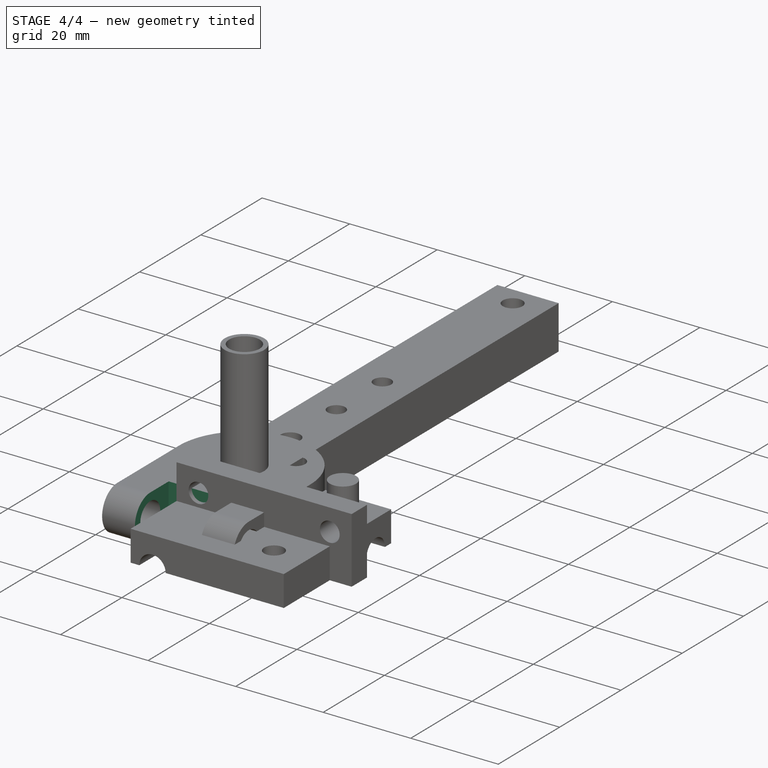
[diagram: stage 4 of 4 — iso view after this stage's code; geometry added in this stage tinted green]
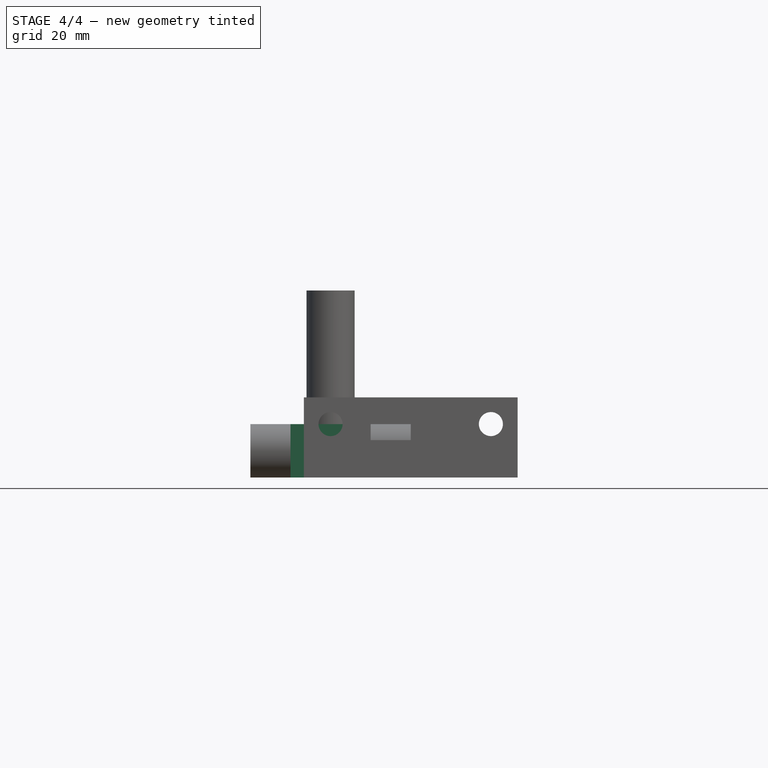
[diagram: stage 4 of 4 — front view after this stage's code; geometry added in this stage tinted green]
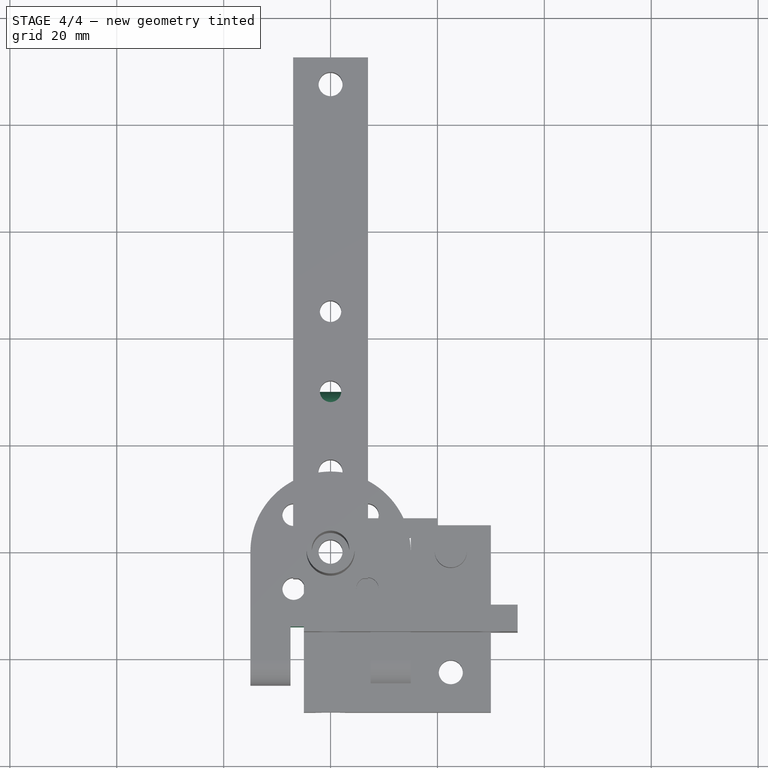
[diagram: stage 4 of 4 — top view after this stage's code; geometry added in this stage tinted green]
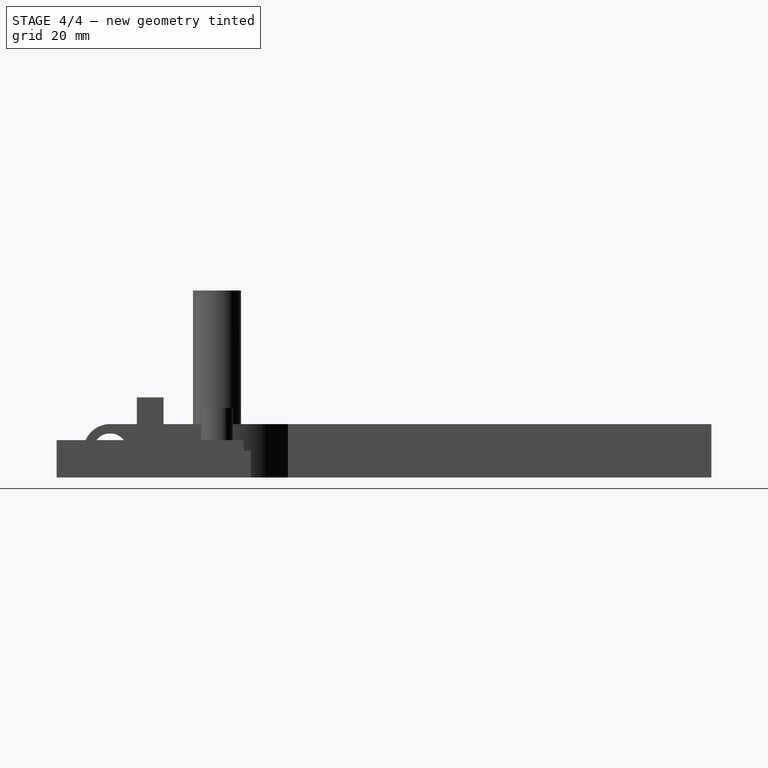
[diagram: stage 4 of 4 — right view after this stage's code; geometry added in this stage tinted green]
FEATURE [Sketcher::SketchObject] Sketch004
  FullyConstrained = true
  MapMode = 5
  Placement = pos=(0,0,0) rot=(0.57735,0.57735,0.57735;2.0944rad)
  Support = -> [YZ_Plane004]
  sketch-geometry (4):
    g0: LineSegment StartX=-25 StartY=0 StartZ=0 EndX=-14 EndY=0 EndZ=0
    g1: LineSegment StartX=-14 StartY=0 StartZ=0 EndX=-14 EndY=11 EndZ=0
    g2: LineSegment StartX=-14 StartY=11 StartZ=0 EndX=-25 EndY=11 EndZ=0
    g3: LineSegment StartX=-25 StartY=11 StartZ=0 EndX=-25 EndY=0 EndZ=0
  constraints (12):
    c: Coincident(g0,g1)
    c: Coincident(g1,g2)
    c: Coincident(g2,g3)
    c: Coincident(g3,g0)
    c: Horizontal(g0)
    c: Horizontal(g2)
    c: Vertical(g1)
    c: Vertical(g3)
    c: PointOnObject(g0,g-1)
    c: DistanceX(g2,g2) = 11
    c: DistanceX(g1,g-1) = 14
    c: Equal(g3,g2)
FEATURE [PartDesign::Pocket] Pocket001
  BaseFeature = -> Pocket
  Length = 15
  Length2 = 100
  Midplane = true
  Profile = -> Sketch004
  Refine = true
  Type = 0
FEATURE [PartDesign::Body] Body_2
  Group = -> [LCS_0003,Sketch002,Pad002,Sketch003,Pocket,Sketch004,Pocket001]
  Origin = -> Origin004
  Tip = -> Pocket001
FEATURE [PartDesign::CoordinateSystem] LCS_0004
  AttacherType = Attacher::AttachEngine3D
  MapMode = 2
  Support = -> [X_Axis005]
FEATURE [PartDesign::CoordinateSystem] LCS_0005
  AttacherType = Attacher::AttachEngine3D
  MapMode = 2
  Support = -> [X_Axis006]
FEATURE [Sketcher::SketchObject] Sketch005
  FullyConstrained = true
  MapMode = 5
  Support = -> [XY_Plane006]
  sketch-geometry (6):
    g0: LineSegment StartX=-7 StartY=-5 StartZ=0 EndX=7 EndY=-5 EndZ=0
    g1: LineSegment StartX=7 StartY=-5 StartZ=0 EndX=7 EndY=30 EndZ=0
    g2: LineSegment StartX=7 StartY=30 StartZ=0 EndX=-7 EndY=30 EndZ=0
    g3: LineSegment StartX=-7 StartY=30 StartZ=0 EndX=-7 EndY=-5 EndZ=0
    g4: Circle CenterX=0 CenterY=0 CenterZ=0 NormalX=0 NormalY=0 NormalZ=1 AngleXU=0 Radius=2.25
    g5: Circle CenterX=0 CenterY=15 CenterZ=0 NormalX=0 NormalY=0 NormalZ=1 AngleXU=0 Radius=2.25
  constraints (16):
    c: Coincident(g0,g1)
    c: Coincident(g1,g2)
    c: Coincident(g2,g3)
    c: Coincident(g3,g0)
    c: Horizontal(g2)
    c: Vertical(g1)
    c: Vertical(g3)
    c: Coincident(g4,g-1)
    c: PointOnObject(g5,g-2)
    c: Diameter(g5) = 4.5
    c: Equal(g5,g4)
    c: Symmetric(g0,g0,g-2)
    c: DistanceX(g0,g0) = 14
    c: DistanceY(g0,g-1) = 5
    c: DistanceY(g5,g1) = 15
    c: DistanceY(g4,g5) = 15
FEATURE [PartDesign::Pad] Pad003
  Direction = (1,1,1)
  Length = 10
  Length2 = 100
  Profile = -> Sketch005
  Refine = true
  Type = 0
FEATURE [Sketcher::SketchObject] Sketch006
  FullyConstrained = true
  MapMode = 5
  Placement = pos=(0,0,0) rot=(0.57735,0.57735,0.57735;2.0944rad)
  Support = -> [YZ_Plane006]
  sketch-geometry (5):
    g0: Circle CenterX=25 CenterY=5 CenterZ=0 NormalX=0 NormalY=0 NormalZ=1 AngleXU=0 Radius=3.25
    g1: ArcOfCircle CenterX=25 CenterY=5 CenterZ=0 NormalX=0 NormalY=0 NormalZ=1 AngleXU=0 Radius=5 StartAngle=4.71239 EndAngle=7.85398
    g2: LineSegment StartX=25 StartY=10 StartZ=0 EndX=31 EndY=10 EndZ=0
    g3: LineSegment StartX=31 StartY=10 StartZ=0 EndX=31 EndY=0 EndZ=0
    g4: LineSegment StartX=31 StartY=0 StartZ=0 EndX=25 EndY=0 EndZ=0
  constraints (15):
    c: Diameter(g0) = 6.5
    c: Coincident(g1,g0)
    c: PointOnObject(g1,g-1)
    c: Vertical(g1,g0)
    c: Vertical(g0,g1)
    c: Diameter(g1) = 10
    c: Coincident(g1,g2)
    c: Coincident(g2,g3)
    c: PointOnObject(g3,g-1)
    c: Coincident(g3,g4)
    c: Coincident(g4,g1)
    c: Vertical(g3)
    c: Horizontal(g2)
    c: DistanceX(g-1,g0) = 25
    c: DistanceX(g2,g2) = 6
FEATURE [PartDesign::Pocket] Pocket002
  BaseFeature = -> Pad003
  Length = 5
  Length2 = 100
  Midplane = true
  Profile = -> Sketch006
  Refine = true
  Type = 1
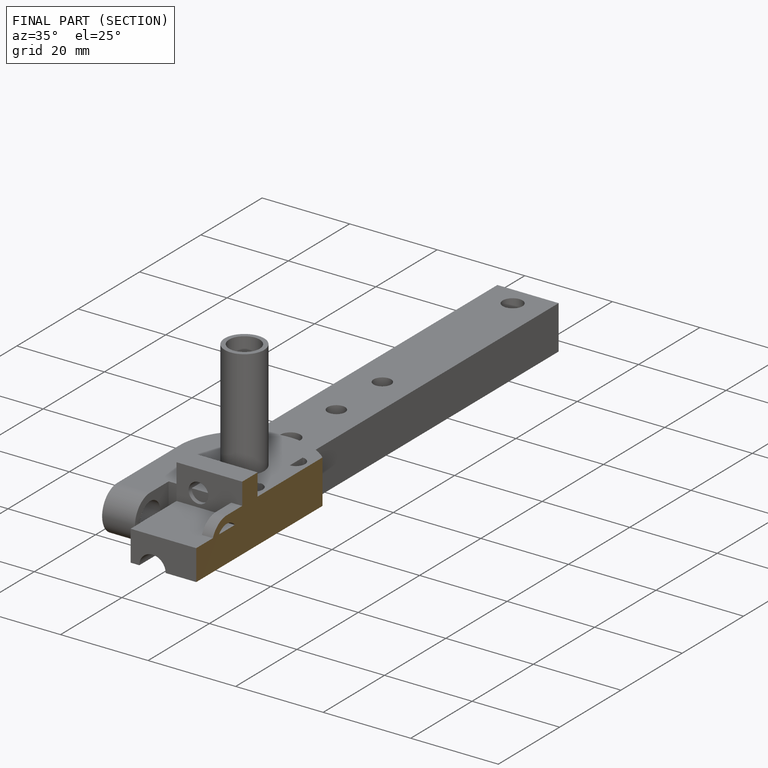
[diagram: finished part — half-section view (interior)]
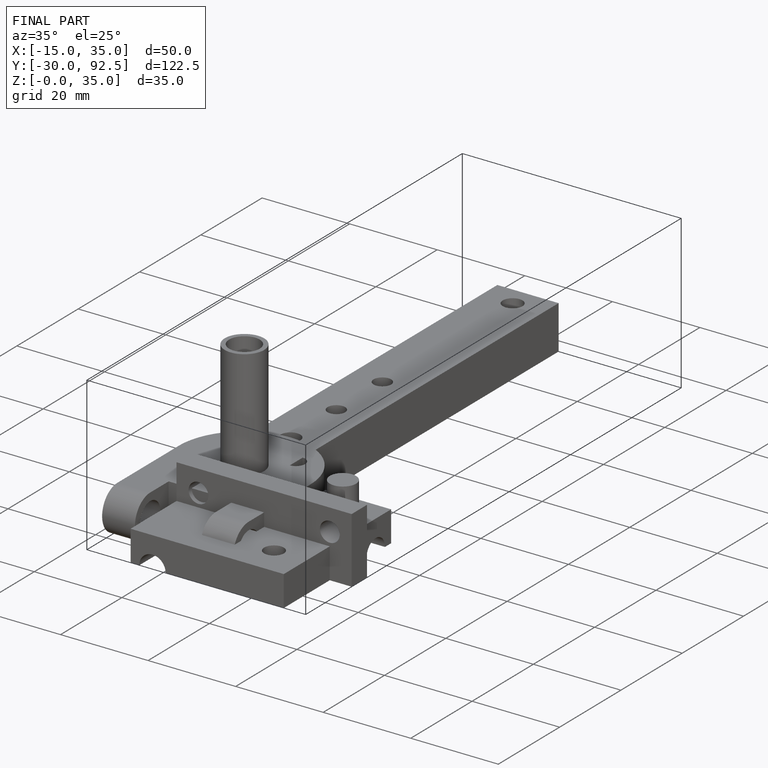
[diagram: finished part — iso view with bounding-box wireframe]
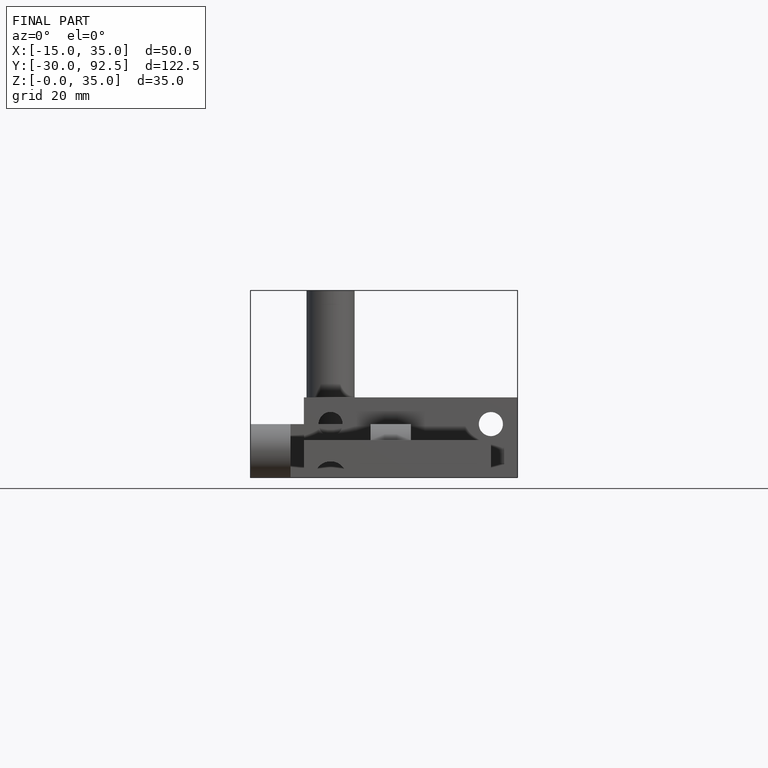
[diagram: finished part — front view with bounding-box wireframe]
